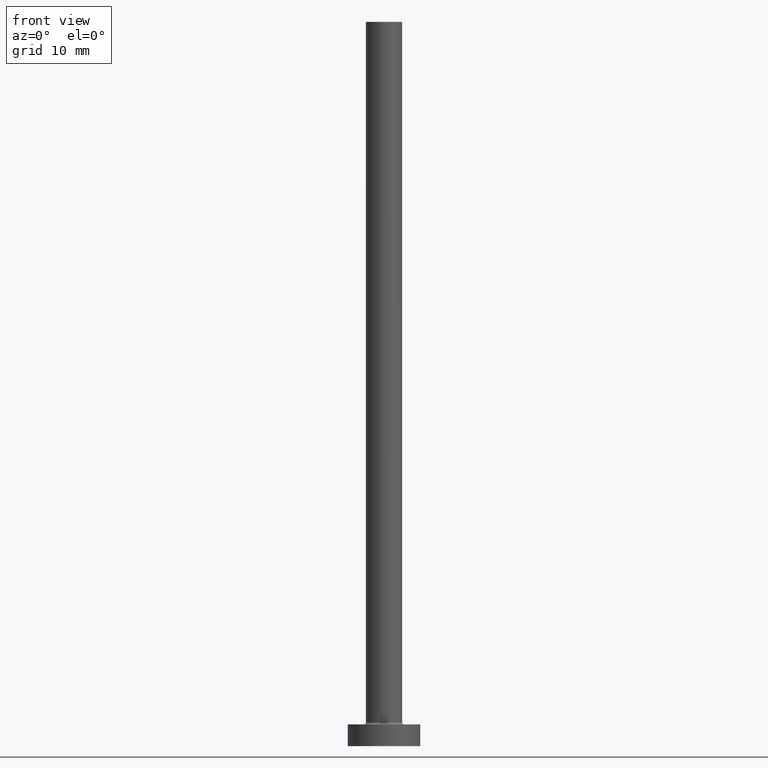
[diagram: clean part render]
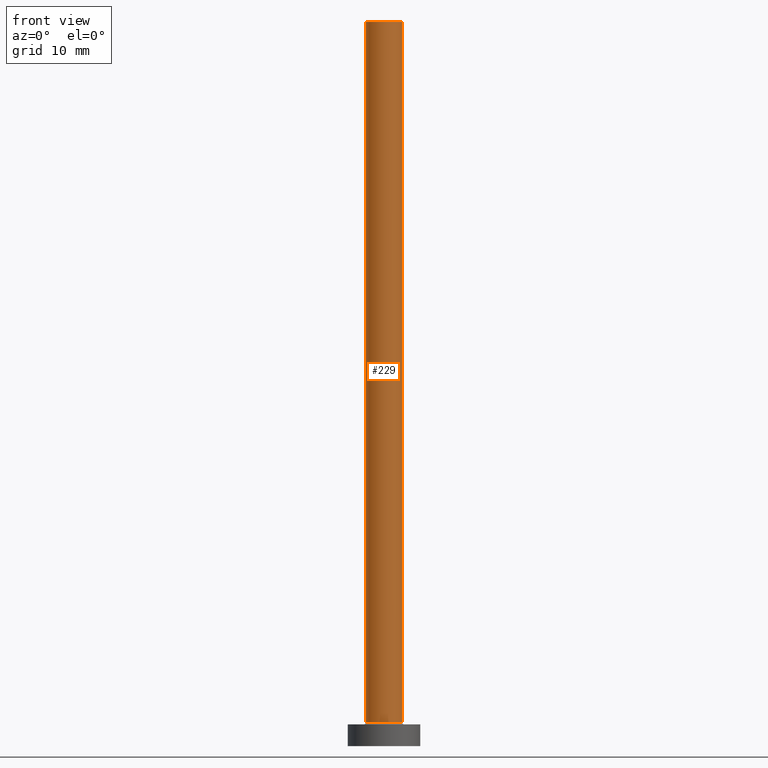
[diagram: same view with one face highlighted and labeled with its STEP entity id]
A machine part, front view. The second image highlights one B-rep face of the part: STEP entity #229.
In plain terms, the highlighted cylindrical surface (edge-blend (fillet) strip) has radius 2.5 mm, axis along (-0, -0, -1).
Its self-contained STEP definition (entity closure, byte-faithful):
#3 = AXIS2_PLACEMENT_3D ( 'NONE', #221, #90, #56 ) ;
#56 = DIRECTION ( 'NONE',  ( 1.000000000000000000, 0.000000000000000000, 0.000000000000000000 ) ) ;
#84 = ORIENTED_EDGE ( 'NONE', *, *, #212, .F. ) ;
#90 = DIRECTION ( 'NONE',  ( 0.000000000000000000, 0.000000000000000000, 1.000000000000000000 ) ) ;
#95 = DIRECTION ( 'NONE',  ( 0.000000000000000000, 0.000000000000000000, 1.000000000000000000 ) ) ;
#97 = DIRECTION ( 'NONE',  ( -1.000000000000000000, 0.000000000000000000, 0.000000000000000000 ) ) ;
#98 = CIRCLE ( 'NONE', #352, 2.500000000000000000 ) ;
#107 = VERTEX_POINT ( 'NONE', #341 ) ;
#123 = CARTESIAN_POINT ( 'NONE',  ( 0.000000000000000000, 0.000000000000000000, 100.0000000000000000 ) ) ;
#130 = DIRECTION ( 'NONE',  ( 1.000000000000000000, 0.000000000000000000, 0.000000000000000000 ) ) ;
#135 = EDGE_CURVE ( 'NONE', #415, #375, #216, .T. ) ;
#140 = ORIENTED_EDGE ( 'NONE', *, *, #135, .F. ) ;
#179 = EDGE_CURVE ( 'NONE', #323, #107, #98, .T. ) ;
#180 = LINE ( 'NONE', #252, #322 ) ;
#212 = EDGE_CURVE ( 'NONE', #375, #107, #344, .T. ) ;
#216 = CIRCLE ( 'NONE', #3, 2.500000000000000000 ) ;
#221 = CARTESIAN_POINT ( 'NONE',  ( 0.000000000000000000, 0.000000000000000000, 100.0000000000000000 ) ) ;
#229 = ADVANCED_FACE ( 'NONE', ( #377 ), #240, .T. ) ;
#238 = ORIENTED_EDGE ( 'NONE', *, *, #373, .T. ) ;
#240 = CYLINDRICAL_SURFACE ( 'NONE', #284, 2.500000000000000000 ) ;
#244 = CARTESIAN_POINT ( 'NONE',  ( 2.500000000000000000, 3.061616997868382648E-16, 100.0000000000000000 ) ) ;
#252 = CARTESIAN_POINT ( 'NONE',  ( -2.500000000000000000, 0.000000000000000000, 100.0000000000000000 ) ) ;
#284 = AXIS2_PLACEMENT_3D ( 'NONE', #123, #370, #97 ) ;
#303 = DIRECTION ( 'NONE',  ( -0.000000000000000000, -0.000000000000000000, -1.000000000000000000 ) ) ;
#322 = VECTOR ( 'NONE', #429, 1000.000000000000000 ) ;
#323 = VERTEX_POINT ( 'NONE', #424 ) ;
#341 = CARTESIAN_POINT ( 'NONE',  ( 2.500000000000000000, 3.061616997868382648E-16, 3.299999999999997158 ) ) ;
#344 = LINE ( 'NONE', #244, #434 ) ;
#351 = CARTESIAN_POINT ( 'NONE',  ( 2.500000000000000000, 3.061616997868382648E-16, 100.0000000000000000 ) ) ;
#352 = AXIS2_PLACEMENT_3D ( 'NONE', #457, #95, #130 ) ;
#370 = DIRECTION ( 'NONE',  ( -0.000000000000000000, -0.000000000000000000, -1.000000000000000000 ) ) ;
#373 = EDGE_CURVE ( 'NONE', #415, #323, #180, .T. ) ;
#375 = VERTEX_POINT ( 'NONE', #351 ) ;
#377 = FACE_OUTER_BOUND ( 'NONE', #437, .T. ) ;
#400 = ORIENTED_EDGE ( 'NONE', *, *, #179, .T. ) ;
#415 = VERTEX_POINT ( 'NONE', #422 ) ;
#422 = CARTESIAN_POINT ( 'NONE',  ( -2.500000000000000000, 0.000000000000000000, 100.0000000000000000 ) ) ;
#424 = CARTESIAN_POINT ( 'NONE',  ( -2.500000000000000000, 0.000000000000000000, 3.299999999999997158 ) ) ;
#429 = DIRECTION ( 'NONE',  ( -0.000000000000000000, -0.000000000000000000, -1.000000000000000000 ) ) ;
#434 = VECTOR ( 'NONE', #303, 1000.000000000000000 ) ;
#437 = EDGE_LOOP ( 'NONE', ( #84, #140, #238, #400 ) ) ;
#457 = CARTESIAN_POINT ( 'NONE',  ( 0.000000000000000000, 0.000000000000000000, 3.299999999999997158 ) ) ;